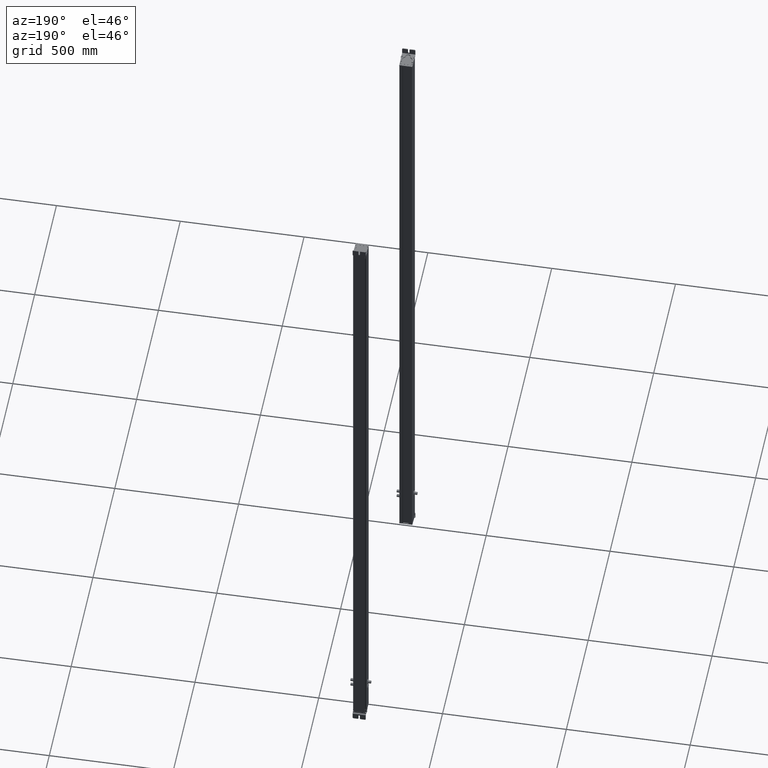
[diagram: clean part render]
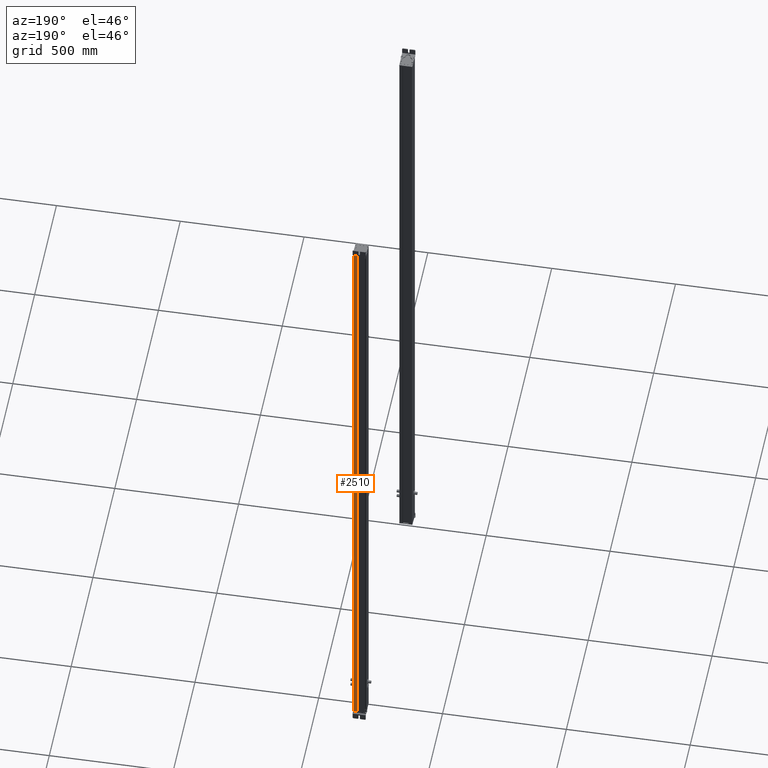
[diagram: same view with one face highlighted and labeled with its STEP entity id]
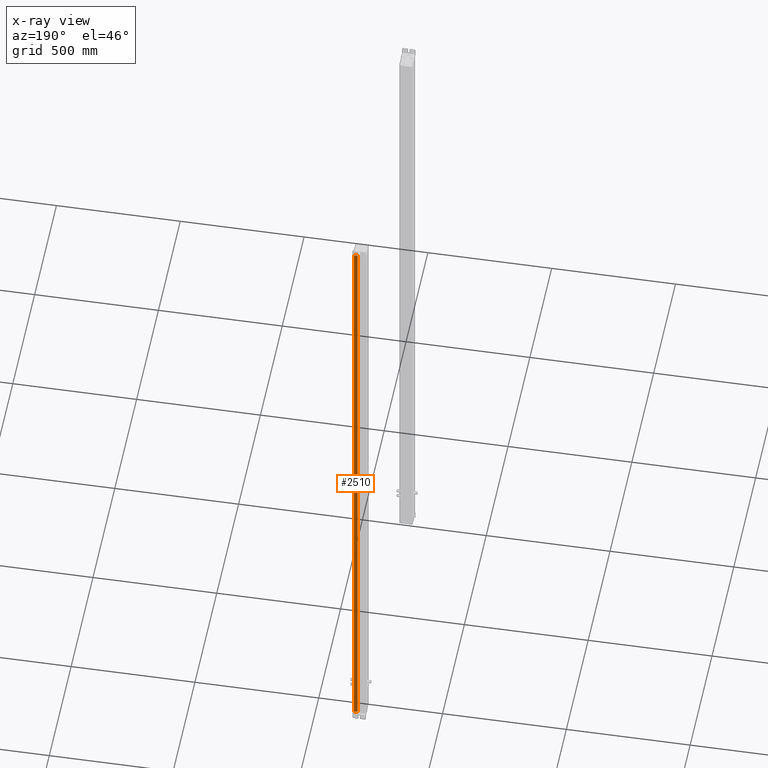
[diagram: x-ray of the same camera — body ghosted, the highlighted face saturated]
A machine part, auxiliary view. The second image highlights one B-rep face of the part: STEP entity #2510.
The next image is the same camera in x-ray: the body ghosted, the highlighted face saturated — about 0% of this face is hidden behind the body in this view.
In plain terms, the highlighted planar face has unit normal (0, 1, 0).
Its self-contained STEP definition (entity closure, byte-faithful):
#2458=CARTESIAN_POINT('Vertex',(617.246770587,120.060780121,0.)) ;
#2461=CARTESIAN_POINT('Line Origine',(617.246770587,120.060780121,1306.)) ;
#2465=CARTESIAN_POINT('Vertex',(617.246770587,120.060780121,2612.)) ;
#2480=CARTESIAN_POINT('Axis2P3D Location',(647.67209889,120.060780121,0.)) ;
#2485=CARTESIAN_POINT('Line Origine',(624.483052148,120.060780121,0.)) ;
#2489=CARTESIAN_POINT('Vertex',(631.719333708,120.060780121,0.)) ;
#2492=CARTESIAN_POINT('Line Origine',(631.719333708,120.060780121,1306.)) ;
#2496=CARTESIAN_POINT('Vertex',(631.719333708,120.060780121,2612.)) ;
#2499=CARTESIAN_POINT('Line Origine',(624.483052148,120.060780121,2612.)) ;
#2462=DIRECTION('Vector Direction',(0.,0.,1.)) ;
#2481=DIRECTION('Axis2P3D Direction',(0.,-1.,0.)) ;
#2482=DIRECTION('Axis2P3D XDirection',(1.,0.,0.)) ;
#2486=DIRECTION('Vector Direction',(1.,0.,0.)) ;
#2493=DIRECTION('Vector Direction',(0.,0.,1.)) ;
#2500=DIRECTION('Vector Direction',(1.,0.,0.)) ;
#2483=AXIS2_PLACEMENT_3D('Plane Axis2P3D',#2480,#2481,#2482) ;
#2505=ORIENTED_EDGE('',*,*,#2467,.F.) ;
#2506=ORIENTED_EDGE('',*,*,#2491,.T.) ;
#2507=ORIENTED_EDGE('',*,*,#2498,.T.) ;
#2508=ORIENTED_EDGE('',*,*,#2503,.F.) ;
#2463=VECTOR('Line Direction',#2462,1.) ;
#2487=VECTOR('Line Direction',#2486,1.) ;
#2494=VECTOR('Line Direction',#2493,1.) ;
#2501=VECTOR('Line Direction',#2500,1.) ;
#2510=ADVANCED_FACE('Body.2',(#2509),#2484,.T.) ;
#2467=EDGE_CURVE('',#2459,#2466,#2464,.T.) ;
#2491=EDGE_CURVE('',#2459,#2490,#2488,.T.) ;
#2498=EDGE_CURVE('',#2490,#2497,#2495,.T.) ;
#2503=EDGE_CURVE('',#2466,#2497,#2502,.T.) ;
#2504=EDGE_LOOP('',(#2505,#2506,#2507,#2508)) ;
#2509=FACE_OUTER_BOUND('',#2504,.T.) ;
#2464=LINE('Line',#2461,#2463) ;
#2488=LINE('Line',#2485,#2487) ;
#2495=LINE('Line',#2492,#2494) ;
#2502=LINE('Line',#2499,#2501) ;
#2484=PLANE('Plane',#2483) ;
#2459=VERTEX_POINT('',#2458) ;
#2466=VERTEX_POINT('',#2465) ;
#2490=VERTEX_POINT('',#2489) ;
#2497=VERTEX_POINT('',#2496) ;